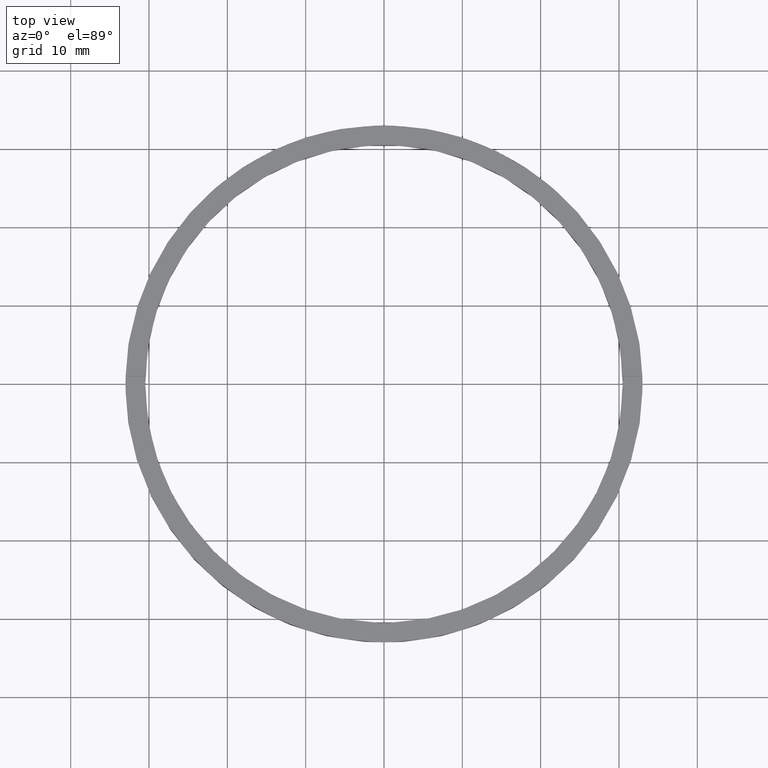
[diagram: clean part render]
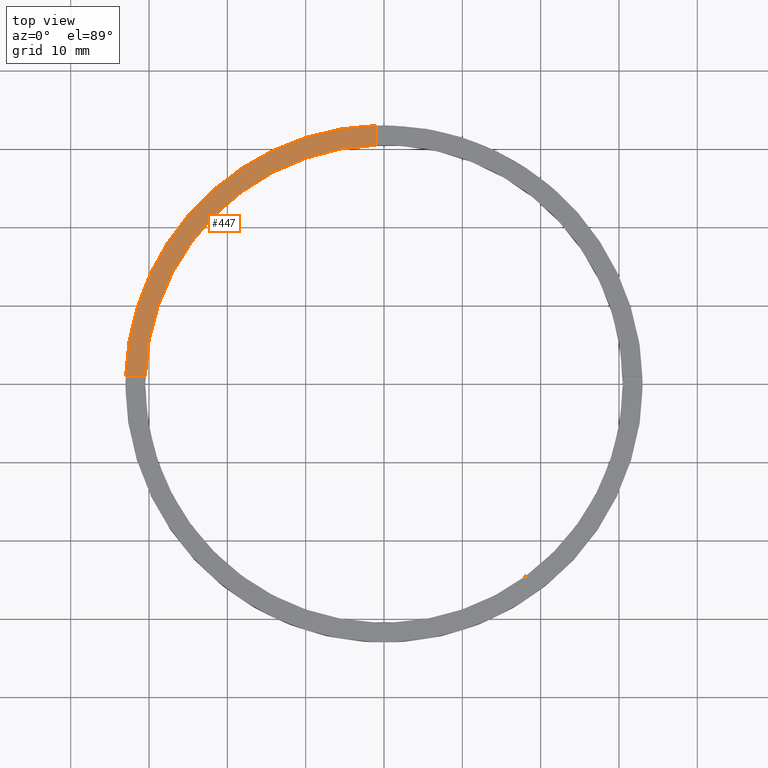
[diagram: same view with one face highlighted and labeled with its STEP entity id]
A machine part, top view. The second image highlights one B-rep face of the part: STEP entity #447.
In plain terms, the highlighted planar face has unit normal (0, 0, 1).
Its self-contained STEP definition (entity closure, byte-faithful):
#6 = CARTESIAN_POINT ( 'NONE',  ( 0.000000000000000000, 0.000000000000000000, 3.000000000000000000 ) ) ;
#38 = EDGE_CURVE ( 'NONE', #131, #623, #414, .T. ) ;
#85 = DIRECTION ( 'NONE',  ( -1.000000000000000000, -1.951563910473908228E-16, 0.000000000000000000 ) ) ;
#117 = VERTEX_POINT ( 'NONE', #754 ) ;
#131 = VERTEX_POINT ( 'NONE', #633 ) ;
#170 = CARTESIAN_POINT ( 'NONE',  ( -32.98484500494129179, 0.9999999999999737987, 3.000000000000000000 ) ) ;
#195 = CARTESIAN_POINT ( 'NONE',  ( 0.000000000000000000, 0.000000000000000000, 3.000000000000000000 ) ) ;
#207 = EDGE_CURVE ( 'NONE', #657, #117, #334, .T. ) ;
#216 = ORIENTED_EDGE ( 'NONE', *, *, #207, .F. ) ;
#221 = ORIENTED_EDGE ( 'NONE', *, *, #712, .T. ) ;
#246 = DIRECTION ( 'NONE',  ( 1.000000000000000000, 0.000000000000000000, 0.000000000000000000 ) ) ;
#280 = AXIS2_PLACEMENT_3D ( 'NONE', #195, #536, #246 ) ;
#295 = CIRCLE ( 'NONE', #722, 33.00000000000000000 ) ;
#311 = ORIENTED_EDGE ( 'NONE', *, *, #422, .F. ) ;
#319 = CIRCLE ( 'NONE', #280, 30.50000000000000000 ) ;
#329 = FACE_OUTER_BOUND ( 'NONE', #757, .T. ) ;
#334 = LINE ( 'NONE', #376, #596 ) ;
#376 = CARTESIAN_POINT ( 'NONE',  ( -1.000000000000024647, 23.00000000000000000, 3.000000000000000000 ) ) ;
#408 = CARTESIAN_POINT ( 'NONE',  ( -23.00000000000018474, 0.9999999999999756861, 3.000000000000000000 ) ) ;
#410 = VECTOR ( 'NONE', #85, 1000.000000000000000 ) ;
#414 = LINE ( 'NONE', #408, #410 ) ;
#422 = EDGE_CURVE ( 'NONE', #117, #131, #319, .T. ) ;
#440 = DIRECTION ( 'NONE',  ( -0.000000000000000000, -1.000000000000000000, -0.000000000000000000 ) ) ;
#447 = ADVANCED_FACE ( 'NONE', ( #329 ), #661, .T. ) ;
#477 = CARTESIAN_POINT ( 'NONE',  ( 0.000000000000000000, 0.000000000000000000, 3.000000000000000000 ) ) ;
#512 = DIRECTION ( 'NONE',  ( 0.000000000000000000, 0.000000000000000000, 1.000000000000000000 ) ) ;
#536 = DIRECTION ( 'NONE',  ( 0.000000000000000000, 0.000000000000000000, 1.000000000000000000 ) ) ;
#551 = DIRECTION ( 'NONE',  ( 1.000000000000000000, 0.000000000000000000, 0.000000000000000000 ) ) ;
#583 = AXIS2_PLACEMENT_3D ( 'NONE', #6, #708, #701 ) ;
#596 = VECTOR ( 'NONE', #440, 1000.000000000000000 ) ;
#623 = VERTEX_POINT ( 'NONE', #170 ) ;
#633 = CARTESIAN_POINT ( 'NONE',  ( -30.48360214935236101, 0.9999999999999744649, 3.000000000000000000 ) ) ;
#654 = ORIENTED_EDGE ( 'NONE', *, *, #38, .F. ) ;
#657 = VERTEX_POINT ( 'NONE', #699 ) ;
#661 = PLANE ( 'NONE',  #583 ) ;
#699 = CARTESIAN_POINT ( 'NONE',  ( -1.000000000000024647, 32.98484500494128469, 3.000000000000000000 ) ) ;
#701 = DIRECTION ( 'NONE',  ( 1.000000000000000000, 0.000000000000000000, -0.000000000000000000 ) ) ;
#708 = DIRECTION ( 'NONE',  ( 0.000000000000000000, 0.000000000000000000, 1.000000000000000000 ) ) ;
#712 = EDGE_CURVE ( 'NONE', #657, #623, #295, .T. ) ;
#722 = AXIS2_PLACEMENT_3D ( 'NONE', #477, #512, #551 ) ;
#754 = CARTESIAN_POINT ( 'NONE',  ( -1.000000000000024647, 30.48360214935236101, 3.000000000000000000 ) ) ;
#757 = EDGE_LOOP ( 'NONE', ( #216, #221, #654, #311 ) ) ;